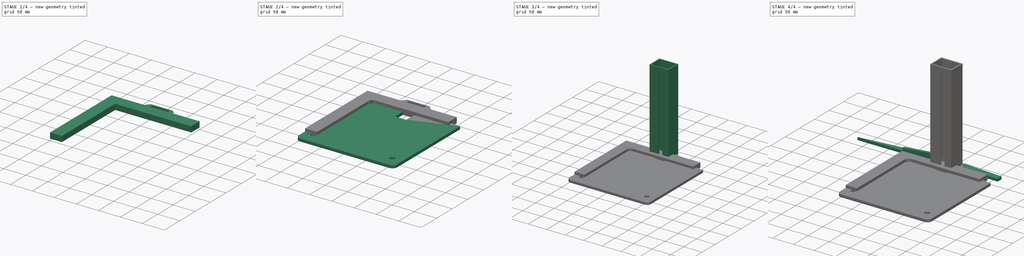
[diagram: build sequence overview — one tinted view per stage of 4, left to right]
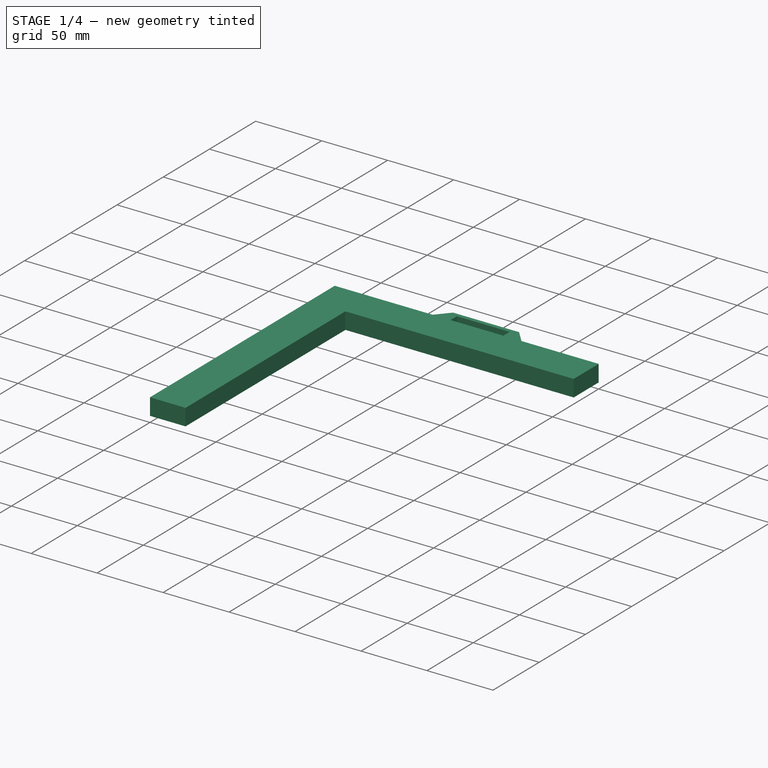
[diagram: stage 1 of 4 — iso view after this stage's code; geometry added in this stage tinted green]
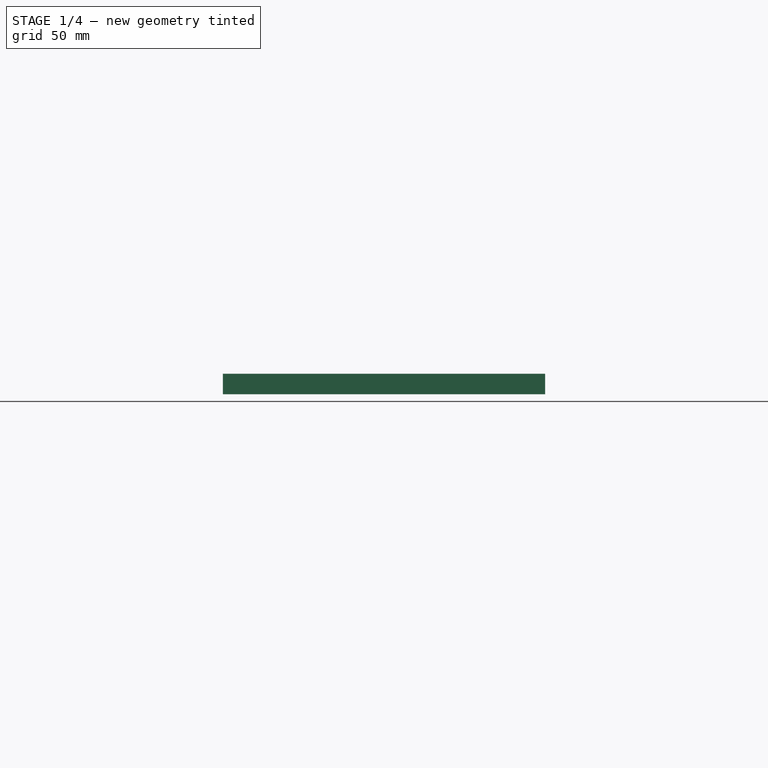
[diagram: stage 1 of 4 — front view after this stage's code; geometry added in this stage tinted green]
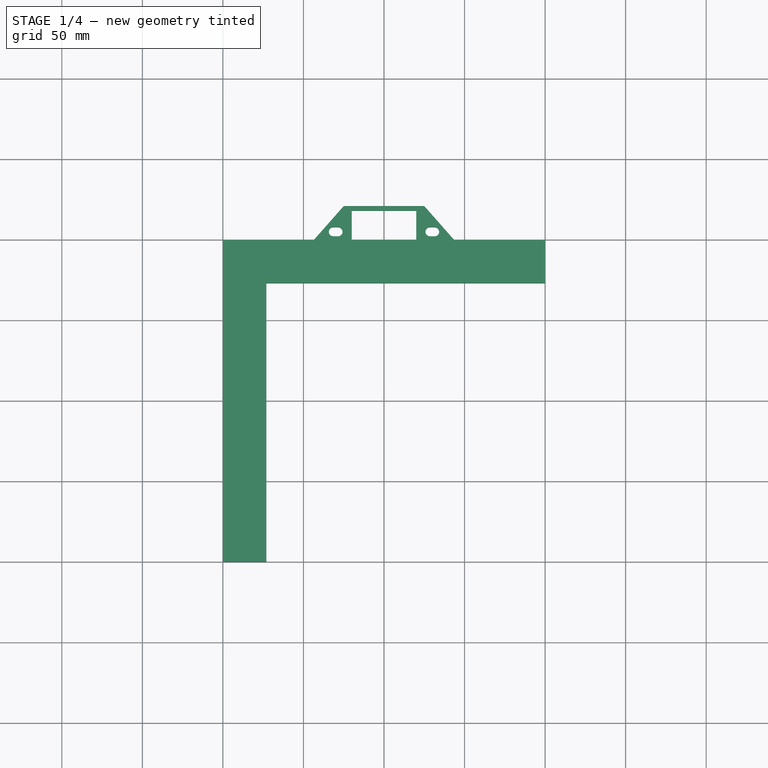
[diagram: stage 1 of 4 — top view after this stage's code; geometry added in this stage tinted green]
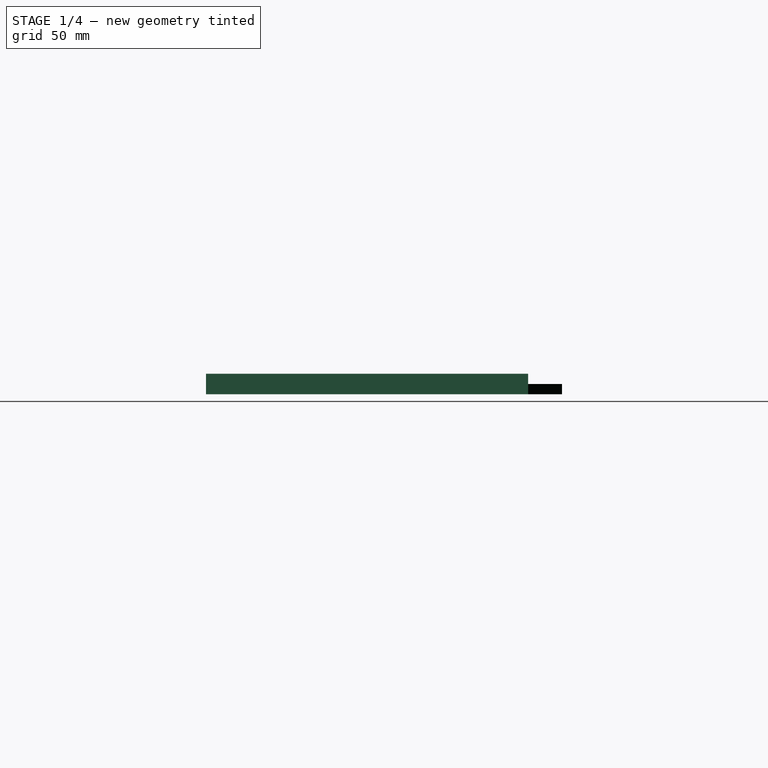
[diagram: stage 1 of 4 — right view after this stage's code; geometry added in this stage tinted green]
FCSTD DOCUMENT  (FreeCAD 0.19R)
Label: Printer3
License: All rights reserved
LicenseURL: http://en.wikipedia.org/wiki/All_rights_reserved
objects: Sketcher::SketchObject×17, PartDesign::Pad×8, PartDesign::Body×8, PartDesign::Pocket×4, PartDesign::Fillet×1
note: 51 computed .brp shape members not serialized (recipe doc carries the construction recipe); baked Part::Feature solids carry a one-line shape summary decoded from their .brp

FEATURE [PartDesign::Body] Body007  label="Bed"
  Group = -> [Sketch012,Pad006,Sketch013,Pocket001]
  Origin = -> Origin007
  Placement = pos=(0,-28,96.35) rot=(0,0,1;0rad)
  Tip = -> Pocket001
FEATURE [Sketcher::SketchObject] Sketch014
  FullyConstrained = true
  MapMode = 5
  Support = -> [XY_Plane008]
  sketch-geometry (4):
    g0: LineSegment StartX=0 StartY=0 StartZ=0 EndX=200 EndY=0 EndZ=0
    g1: LineSegment StartX=200 StartY=0 StartZ=0 EndX=200 EndY=-200 EndZ=0
    g2: LineSegment StartX=200 StartY=-200 StartZ=0 EndX=0 EndY=-200 EndZ=0
    g3: LineSegment StartX=0 StartY=-200 StartZ=0 EndX=0 EndY=0 EndZ=0
  constraints (11):
    c: Coincident(g0,g1)
    c: Coincident(g1,g2)
    c: Coincident(g2,g3)
    c: Coincident(g3,g0)
    c: Horizontal(g0)
    c: Horizontal(g2)
    c: Vertical(g1)
    c: Vertical(g3)
    c: Coincident(g0,g-1)
    c: Distance(g0) = 200
    c: Distance(g1) = 200
FEATURE [PartDesign::Pad] Pad007
  Direction = (1,1,1)
  Length = 12.7
  Length2 = 100
  Profile = -> Sketch014
  Type = 0
FEATURE [Sketcher::SketchObject] Sketch015
  FullyConstrained = false
  MapMode = 5
  Placement = pos=(0,0,12.7) rot=(0,0,1;0rad)
  Support = -> [Pad007]
  sketch-geometry (4):
    g0: LineSegment StartX=27 StartY=-27 StartZ=0 EndX=356.815 EndY=-27 EndZ=0
    g1: LineSegment StartX=356.815 StartY=-27 StartZ=0 EndX=356.815 EndY=-319.156 EndZ=0
    g2: LineSegment StartX=356.815 StartY=-319.156 StartZ=0 EndX=27 EndY=-319.156 EndZ=0
    g3: LineSegment StartX=27 StartY=-319.156 StartZ=0 EndX=27 EndY=-27 EndZ=0
  constraints (10):
    c: Coincident(g0,g1)
    c: Coincident(g1,g2)
    c: Coincident(g2,g3)
    c: Coincident(g3,g0)
    c: Horizontal(g0)
    c: Horizontal(g2)
    c: Vertical(g1)
    c: Vertical(g3)
    c: DistanceX(g0) = 27
    c: DistanceY(g0) = -27
FEATURE [PartDesign::Pocket] Pocket002
  BaseFeature = -> Pad007
  Length = 13
  Length2 = 100
  Profile = -> Sketch015
  Type = 0
FEATURE [Sketcher::SketchObject] Sketch017
  FullyConstrained = false
  MapMode = 5
  Placement = pos=(0,-17,0) rot=(1,0,0;1.5708rad)
  Support = -> [Pocket]
  sketch-geometry (9):
    g0: LineSegment StartX=89 StartY=196.442 StartZ=0 EndX=97 EndY=196.442 EndZ=0
    g1: LineSegment StartX=97 StartY=196.442 StartZ=0 EndX=97 EndY=176.538 EndZ=0
    g2: LineSegment StartX=97 StartY=176.538 StartZ=0 EndX=89 EndY=176.538 EndZ=0
    g3: LineSegment StartX=89 StartY=176.538 StartZ=0 EndX=89 EndY=196.442 EndZ=0
    g4: LineSegment StartX=100 StartY=275.798 StartZ=0 EndX=100 EndY=-189.424 EndZ=0
    g5: LineSegment StartX=93 StartY=214.672 StartZ=0 EndX=93 EndY=194.243 EndZ=0
    g6: LineSegment StartX=123 StartY=219.526 StartZ=0 EndX=123 EndY=197.969 EndZ=0
    g7: LineSegment StartX=102.65 StartY=201.069 StartZ=0 EndX=102.65 EndY=188.207 EndZ=0
    g8: LineSegment StartX=109 StartY=200.806 StartZ=0 EndX=109 EndY=186.098 EndZ=0
  constraints (19):
    c: Coincident(g0,g1)
    c: Coincident(g1,g2)
    c: Coincident(g2,g3)
    c: Coincident(g3,g0)
    c: Horizontal(g0)
    c: Horizontal(g2)
    c: Vertical(g1)
    c: Vertical(g3)
    c: Vertical(g4)
    c: DistanceX(g4) = 100
    c: Distance(g0) = 8
    c: Vertical(g6)
    c: Distance(g6,g4) = 23
    c: Distance(g5,g6) = 30
    c: Symmetric(g0,g0,g5)
    c: Vertical(g7)
    c: Distance(g7,g6) = 20.35
    c: Vertical(g8)
    c: Distance(g8,g7) = 6.35
FEATURE [Sketcher::SketchObject] Sketch018
  FullyConstrained = true
  MapMode = 5
  Placement = pos=(0,0,225) rot=(0,0,1;0rad)
  Support = -> [Pocket]
FEATURE [PartDesign::Body] Body002  label="Column"
  Group = -> [Sketch006,Pad001,Sketch007,Pocket,Sketch017,Sketch018]
  Origin = -> Origin002
  Placement = pos=(0,-22,0) rot=(0,0,1;0rad)
  Tip = -> Pocket
FEATURE [Sketcher::SketchObject] Sketch019
  ExternalGeometry = -> [Pocket003]
  FullyConstrained = true
  MapMode = 5
  Placement = pos=(0,0,6.35) rot=(0,0,1;0rad)
  Support = -> [Pocket003]
FEATURE [Sketcher::SketchObject] Sketch020
  ExternalGeometry = -> [Pad]
  FullyConstrained = false
  MapMode = 5
  Placement = pos=(0,0,0) rot=(1,0,0;3.14159rad)
  Support = -> [Pad]
  sketch-geometry (4):
    g0: LineSegment StartX=92.1821 StartY=-18.4998 StartZ=0 EndX=96.667 EndY=-18.4998 EndZ=0
    g1: LineSegment StartX=96.667 StartY=-18.4998 StartZ=0 EndX=96.667 EndY=-3 EndZ=0
    g2: LineSegment StartX=96.667 StartY=-3 StartZ=0 EndX=92.1821 EndY=-3 EndZ=0
    g3: LineSegment StartX=92.1821 StartY=-3 StartZ=0 EndX=92.1821 EndY=-18.4998 EndZ=0
  constraints (9):
    c: Coincident(g0,g1)
    c: Coincident(g1,g2)
    c: Coincident(g2,g3)
    c: Coincident(g3,g0)
    c: Horizontal(g0)
    c: Horizontal(g2)
    c: Vertical(g1)
    c: Vertical(g3)
    c: Distance(g1,g-3) = 20
FEATURE [PartDesign::Body] Body  label="Base"
  Group = -> [Sketch,Pad,Sketch016,Pocket003,Sketch019,Sketch020]
  Origin = -> Origin
  Placement = pos=(0,-22,0) rot=(0,0,1;0rad)
  Tip = -> Pocket003
FEATURE [Sketcher::SketchObject] Sketch021
  FullyConstrained = false
  MapMode = 5
  Placement = pos=(0,0,12.7) rot=(0,0,1;0rad)
  Support = -> [Fillet]
  sketch-geometry (3):
    g0: Circle CenterX=5 CenterY=-5 CenterZ=0 NormalX=0 NormalY=0 NormalZ=1 AngleXU=0 Radius=3.84809
    g1: LineSegment StartX=100 StartY=-3.69453 StartZ=0 EndX=100 EndY=-13.0067 EndZ=0
    g2: LineSegment StartX=26 StartY=35.8308 StartZ=0 EndX=26 EndY=-39.0103 EndZ=0
  constraints (6):
    c: DistanceX(g0) = 5
    c: DistanceY(g0) = -5
    c: Vertical(g1)
    c: DistanceX(g1) = 100
    c: Vertical(g2)
    c: Distance(g0,g2) = 21
FEATURE [PartDesign::Body] Body008  label="gantry"
  Group = -> [Sketch014,Pad007,Sketch015,Pocket002,Fillet,Sketch021]
  Origin = -> Origin008
  Placement = pos=(0,-22,231) rot=(0,0,1;0rad)
  Tip = -> Fillet
FEATURE [Sketcher::SketchObject] Sketch022
  FullyConstrained = false
  MapMode = 5
  Support = -> [XY_Plane009]
  sketch-geometry (25):
    g0: LineSegment StartX=30 StartY=-17 StartZ=0 EndX=170 EndY=-17 EndZ=0
    g1: LineSegment StartX=170 StartY=-17 StartZ=0 EndX=170 EndY=0 EndZ=0
    g2: LineSegment StartX=170 StartY=0 StartZ=0 EndX=143.52 EndY=0 EndZ=0
    g3: LineSegment StartX=143.52 StartY=0 StartZ=0 EndX=125 EndY=21 EndZ=0
    g4: LineSegment StartX=125 StartY=21 StartZ=0 EndX=75 EndY=21 EndZ=0
    g5: LineSegment StartX=75 StartY=21 StartZ=0 EndX=56.4797 EndY=0 EndZ=0
    g6: LineSegment StartX=56.4797 StartY=0 StartZ=0 EndX=30 EndY=0 EndZ=0
    g7: LineSegment StartX=30 StartY=0 StartZ=0 EndX=30 EndY=-17 EndZ=0
    g8: LineSegment StartX=100 StartY=41.9459 StartZ=0 EndX=100 EndY=-57.4771 EndZ=0
    g9: ArcOfCircle CenterX=68.5 CenterY=5 CenterZ=0 NormalX=0 NormalY=0 NormalZ=1 AngleXU=0 Radius=2.75 StartAngle=1.5708 EndAngle=4.71239
    g10: ArcOfCircle CenterX=71.5 CenterY=5 CenterZ=0 NormalX=0 NormalY=0 NormalZ=1 AngleXU=0 Radius=2.75 StartAngle=4.71239 EndAngle=7.85398
    g11: LineSegment StartX=68.5 StartY=2.25 StartZ=0 EndX=71.5 EndY=2.25 EndZ=0
    g12: LineSegment StartX=68.5 StartY=7.75 StartZ=0 EndX=71.5 EndY=7.75 EndZ=0
    g13: ArcOfCircle CenterX=128.5 CenterY=5 CenterZ=0 NormalX=0 NormalY=0 NormalZ=1 AngleXU=0 Radius=2.75 StartAngle=1.5708 EndAngle=4.71239
    g14: ArcOfCircle CenterX=131.5 CenterY=5 CenterZ=0 NormalX=0 NormalY=0 NormalZ=1 AngleXU=0 Radius=2.75 StartAngle=4.71239 EndAngle=7.85398
    g15: LineSegment StartX=128.5 StartY=2.25 StartZ=0 EndX=131.5 EndY=2.25 EndZ=0
    g16: LineSegment StartX=128.5 StartY=7.75 StartZ=0 EndX=131.5 EndY=7.75 EndZ=0
    g17: Circle CenterX=37.5 CenterY=-11 CenterZ=0 NormalX=0 NormalY=0 NormalZ=1 AngleXU=0 Radius=3.25
    g18: Circle CenterX=65 CenterY=-6 CenterZ=0 NormalX=0 NormalY=0 NormalZ=1 AngleXU=0 Radius=3.25
    g19: Circle CenterX=135 CenterY=-6 CenterZ=0 NormalX=0 NormalY=0 NormalZ=1 AngleXU=0 Radius=3.25
    g20: Circle CenterX=162.5 CenterY=-11 CenterZ=0 NormalX=0 NormalY=0 NormalZ=1 AngleXU=0 Radius=3.25
    g21: LineSegment StartX=80 StartY=18 StartZ=0 EndX=120 EndY=18 EndZ=0
    g22: LineSegment StartX=120 StartY=18 StartZ=0 EndX=120 EndY=0 EndZ=0
    g23: LineSegment StartX=120 StartY=0 StartZ=0 EndX=80 EndY=0 EndZ=0
    g24: LineSegment StartX=80 StartY=0 StartZ=0 EndX=80 EndY=18 EndZ=0
  constraints (64):
    c: Horizontal(g0)
    c: Coincident(g0,g1)
    c: PointOnObject(g1,g-1)
    c: Vertical(g1)
    c: Coincident(g1,g2)
    c: PointOnObject(g2,g-1)
    c: Coincident(g2,g3)
    c: Coincident(g3,g4)
    c: Horizontal(g4)
    c: Coincident(g4,g5)
    c: Coincident(g5,g6)
    c: PointOnObject(g6,g-1)
    c: Coincident(g6,g7)
    c: Coincident(g0,g7)
    c: Distance(g1) = 17
    c: Vertical(g7)
    c: DistanceX(g8) = 100
    c: Symmetric(g3,g4,g8)
    c: Symmetric(g2,g5,g8)
    c: Equal(g2,g6)
    c: DistanceY(g3) = 21
    c: Distance(g4) = 50
    c: DistanceX(g0) = 30
    c: Distance(g3) = 28
    c: Tangent(g9,g12) = 1.5708
    c: Tangent(g9,g11) = -1.5708
    c: Tangent(g11,g10) = -1.5708
    c: Tangent(g12,g10) = 1.5708
    c: Horizontal(g11)
    c: Equal(g9,g10)
    c: Tangent(g13,g16) = 1.5708
    c: Tangent(g13,g15) = -1.5708
    c: Tangent(g15,g14) = -1.5708
    c: Tangent(g16,g14) = 1.5708
    c: Horizontal(g15)
    c: Equal(g13,g14)
    c: Diameter(g19) = 6.5
    c: Equal(g19,g18)
    c: Equal(g19,g17)
    c: Symmetric(g18,g19,g8)
    c: Symmetric(g20,g17,g8)
    c: DistanceY(g17) = -11
    c: DistanceY(g18) = -6
    c: Diameter(g20) = 6.5
    c: DistanceX(g20) = 162.5
    c: Distance(g10,g10) = 5.5
    c: Distance(g12) = 3
    c: Distance(g16) = 3
    c: Distance(g13,g13) = 5.5
    c: Symmetric(g14,g9,g8)
    c: DistanceY(g10) = 5
    c: Distance(g14,g10) = 60
    c: Distance(g19,g18) = 70
    c: Coincident(g21,g22)
    c: Coincident(g22,g23)
    c: Coincident(g23,g24)
    c: Coincident(g24,g21)
    c: Horizontal(g21)
    c: Vertical(g22)
    c: Vertical(g24)
    c: Symmetric(g22,g23,g8)
    c: DistanceY(g21) = 18
    c: PointOnObject(g22,g-1)
    c: Distance(g21) = 40
FEATURE [PartDesign::Pad] Pad008
  Direction = (1,1,1)
  Length = 6.35
  Length2 = 100
  Profile = -> Sketch022
  Type = 0
FEATURE [PartDesign::Body] Body009  label="TopPlate"
  Group = -> [Sketch022,Pad008]
  Origin = -> Origin009
  Placement = pos=(0,-22,225) rot=(0,0,1;0rad)
  Tip = -> Pad008
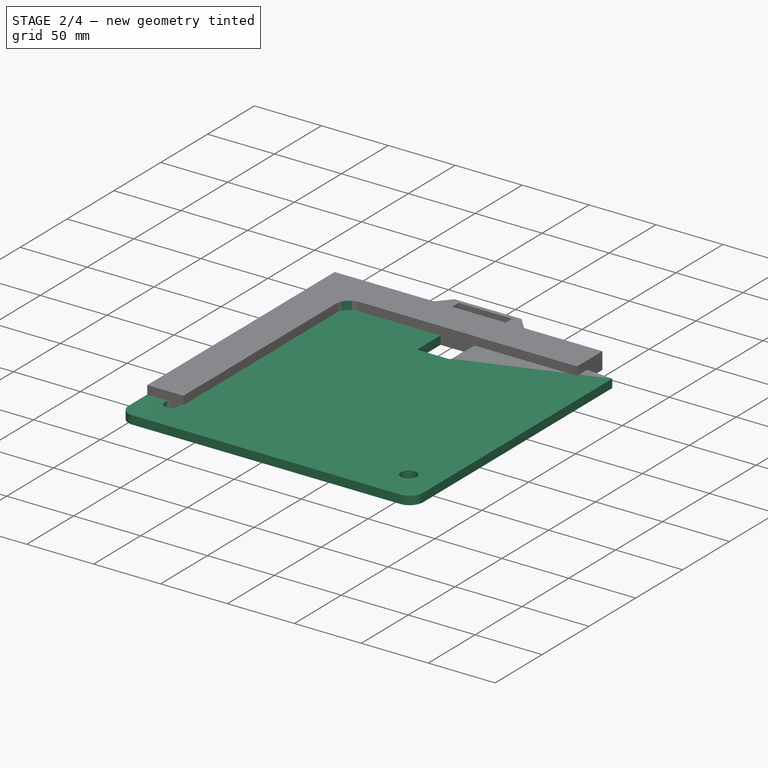
[diagram: stage 2 of 4 — iso view after this stage's code; geometry added in this stage tinted green]
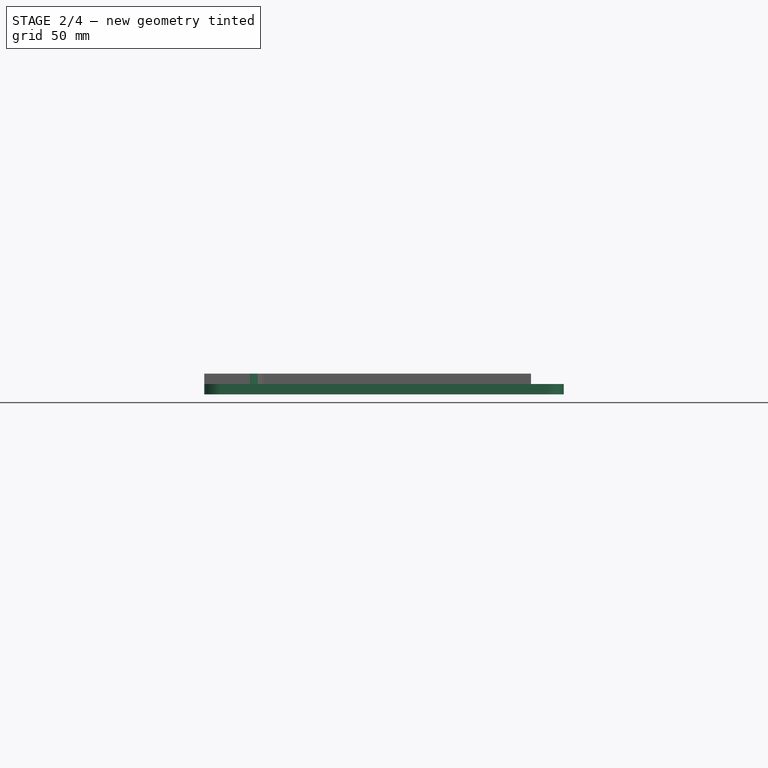
[diagram: stage 2 of 4 — front view after this stage's code; geometry added in this stage tinted green]
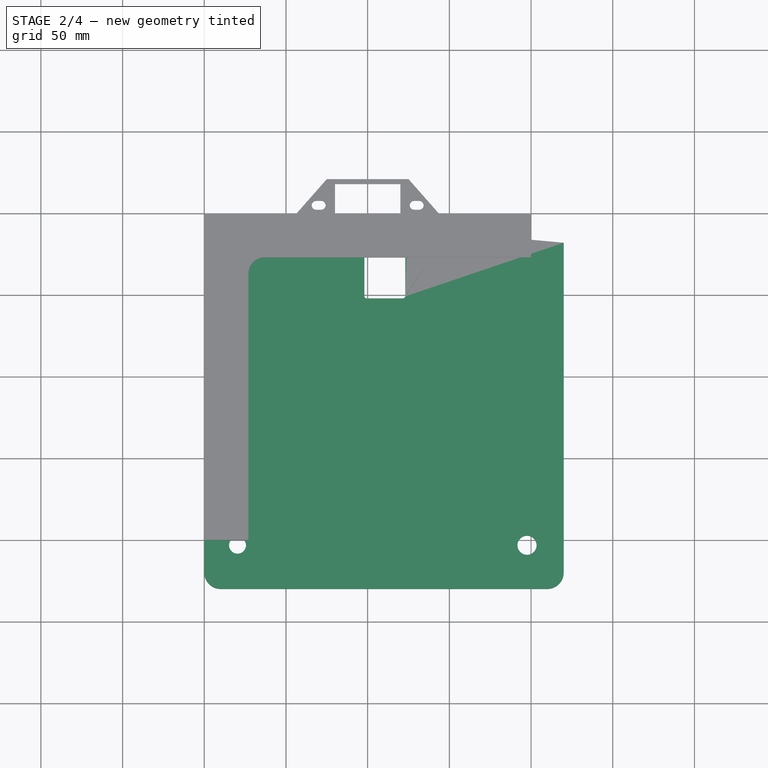
[diagram: stage 2 of 4 — top view after this stage's code; geometry added in this stage tinted green]
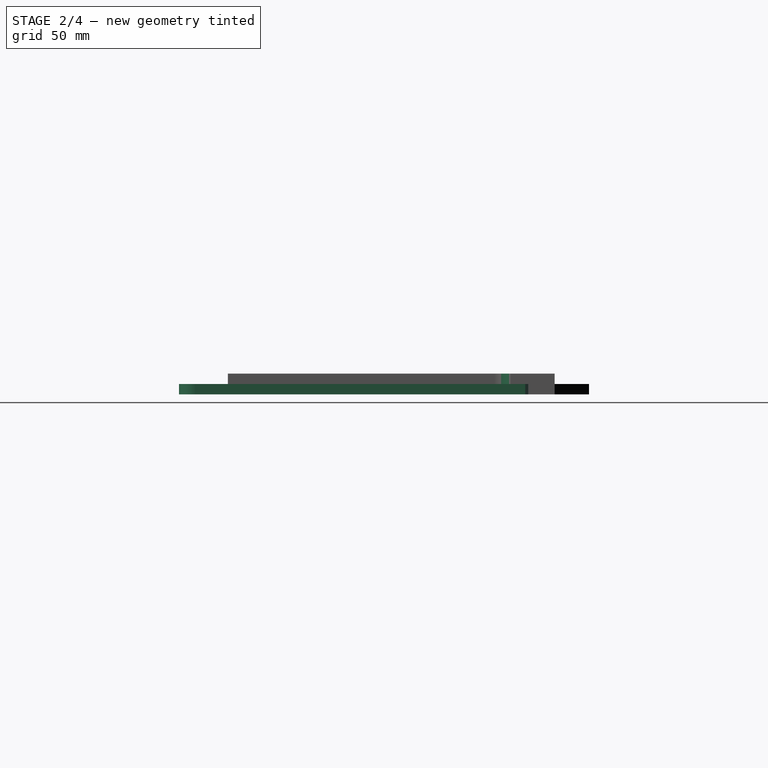
[diagram: stage 2 of 4 — right view after this stage's code; geometry added in this stage tinted green]
FEATURE [Sketcher::SketchObject] Sketch
  FullyConstrained = false
  MapMode = 5
  sketch-geometry (25):
    g0: LineSegment StartX=220 StartY=-2.5 StartZ=0 EndX=220 EndY=-219.878 EndZ=0
    g1: LineSegment StartX=210 StartY=-229.878 StartZ=0 EndX=10 EndY=-229.878 EndZ=0
    g2: LineSegment StartX=0 StartY=-219.878 StartZ=0 EndX=0 EndY=-2.5 EndZ=0
    g3: LineSegment StartX=2.5 StartY=0 StartZ=0 EndX=74.5 EndY=0 EndZ=0
    g4: LineSegment StartX=74.5 StartY=0 StartZ=0 EndX=74.5 EndY=-14.5 EndZ=0
    g5: LineSegment StartX=125.5 StartY=-14.5 StartZ=0 EndX=125.5 EndY=0 EndZ=0
    g6: LineSegment StartX=125.5 StartY=0 StartZ=0 EndX=217.5 EndY=0 EndZ=0
    g7: LineSegment StartX=100 StartY=29.7116 StartZ=0 EndX=100 EndY=-38.9559 EndZ=0
    g8: ArcOfCircle CenterX=2.5 CenterY=-2.5 CenterZ=0 NormalX=0 NormalY=0 NormalZ=1 AngleXU=0 Radius=2.5 StartAngle=1.5708 EndAngle=3.14159
    g9: ArcOfCircle CenterX=217.5 CenterY=-2.5 CenterZ=0 NormalX=0 NormalY=0 NormalZ=1 AngleXU=0 Radius=2.5 StartAngle=4.63e-14 EndAngle=1.5708
    g10: ArcOfCircle CenterX=210 CenterY=-219.878 CenterZ=0 NormalX=0 NormalY=0 NormalZ=1 AngleXU=0 Radius=10 StartAngle=4.71239 EndAngle=6.28319
    g11: ArcOfCircle CenterX=10 CenterY=-219.878 CenterZ=0 NormalX=0 NormalY=0 NormalZ=1 AngleXU=0 Radius=10 StartAngle=3.14159 EndAngle=4.71239
    g12: ArcOfCircle CenterX=123 CenterY=-14.5 CenterZ=0 NormalX=0 NormalY=0 NormalZ=1 AngleXU=0 Radius=2.5 StartAngle=4.71239 EndAngle=6.28319
    g13: ArcOfCircle CenterX=77 CenterY=-14.5 CenterZ=0 NormalX=0 NormalY=0 NormalZ=1 AngleXU=0 Radius=2.5 StartAngle=3.14159 EndAngle=4.71239
    g14: LineSegment StartX=98 StartY=-17 StartZ=0 EndX=98 EndY=-50.5 EndZ=0
    g15: LineSegment StartX=99.5 StartY=-52 StartZ=0 EndX=121.5 EndY=-52 EndZ=0
    g16: LineSegment StartX=123 StartY=-50.5 StartZ=0 EndX=123 EndY=-17 EndZ=0
    g17: LineSegment StartX=77 StartY=-17 StartZ=0 EndX=98 EndY=-17 EndZ=0
    g18: ArcOfCircle CenterX=99.5 CenterY=-50.5 CenterZ=0 NormalX=0 NormalY=0 NormalZ=1 AngleXU=0 Radius=1.5 StartAngle=3.14159 EndAngle=4.71239
    g19: ArcOfCircle CenterX=121.5 CenterY=-50.5 CenterZ=0 NormalX=0 NormalY=0 NormalZ=1 AngleXU=0 Radius=1.5 StartAngle=4.71239 EndAngle=6.28319
    g20: Circle CenterX=207 CenterY=-216.878 CenterZ=0 NormalX=0 NormalY=0 NormalZ=1 AngleXU=0 Radius=2.25
    g21: Circle CenterX=13 CenterY=-216.878 CenterZ=0 NormalX=0 NormalY=0 NormalZ=1 AngleXU=0 Radius=2.25
    g22: Circle CenterX=207 CenterY=-13 CenterZ=0 NormalX=0 NormalY=0 NormalZ=1 AngleXU=0 Radius=2.25
    g23: Circle CenterX=13 CenterY=-13 CenterZ=0 NormalX=0 NormalY=0 NormalZ=1 AngleXU=0 Radius=2.25
    g24: LineSegment StartX=110 StartY=54.384 StartZ=0 EndX=110 EndY=-317.389 EndZ=0
  constraints (63):
    c: Vertical(g0)
    c: Vertical(g2)
    c: Equal(g2,g0)
    c: PointOnObject(g3,g-1)
    c: Horizontal(g3)
    c: Coincident(g3,g4)
    c: PointOnObject(g5,g-1)
    c: Coincident(g5,g6)
    c: Horizontal(g6)
    c: Vertical(g5)
    c: Vertical(g4)
    c: Symmetric(g5,g3,g7)
    c: DistanceX(g7) = 100
    c: Tangent(g2,g8) = 1.5708
    c: Tangent(g3,g8) = 1.5708
    c: Tangent(g6,g9) = 1.5708
    c: Tangent(g0,g9) = 1.5708
    c: Tangent(g1,g10) = 1.5708
    c: Tangent(g0,g10) = 1.5708
    c: Tangent(g1,g11) = 1.5708
    c: Tangent(g2,g11) = 1.5708
    c: PointOnObject(g2,g-2)
    c: Tangent(g5,g12) = -1.5708
    c: Tangent(g4,g13) = -1.5708
    c: Equal(g12,g13)
    c: Distance(g5,g3) = 51
    c: Vertical(g14)
    c: Vertical(g16)
    c: Horizontal(g17)
    c: DistanceY(g12) = -17
    c: Tangent(g14,g18) = -1.5708
    c: Tangent(g15,g18) = -1.5708
    c: Tangent(g16,g19) = -1.5708
    c: Tangent(g15,g19) = -1.5708
    c: DistanceY(g17) = -17
    c: Distance(g16,g14) = 25
    c: Tangent(g17,g13) = -1.5708
    c: DistanceY(g15,g16) = 35
    c: Coincident(g14,g17)
    c: Horizontal(g15)
    c: Diameter(g19) = 3
    c: Diameter(g10) = 20
    c: Diameter(g11) = 20
    c: Diameter(g9) = 5
    c: Diameter(g8) = 5
    c: Distance(g0,g2) = 220
    c: Distance(g6,g1) = 230
    c: Diameter(g18) = 3
    c: Diameter(g13) = 5
    c: Coincident(g16,g12)
    c: Perpendicular(g12,g16)
    c: Diameter(g23) = 4.5
    c: Equal(g23,g22)
    c: Equal(g23,g20)
    c: Diameter(g21) = 4.5
    c: Vertical(g24)
    c: DistanceX(g24) = 110
    c: Symmetric(g22,g23,g24)
    c: Symmetric(g20,g21,g24)
    c: Distance(g20,g0) = 13
    c: Distance(g20,g1) = 13
    c: Distance(g22,g0) = 13
    c: Distance(g22,g6) = 13
FEATURE [PartDesign::Pad] Pad
  Direction = (1,1,1)
  Length = 6.35
  Length2 = 100
  Profile = -> Sketch
  Type = 0
FEATURE [PartDesign::Fillet] Fillet
  Base = -> Pocket002 [Edge18]
  BaseFeature = -> Pocket002
  Radius = 10
  SupportTransform = false
FEATURE [Sketcher::SketchObject] Sketch016
  FullyConstrained = false
  MapMode = 5
  Placement = pos=(0,0,0) rot=(1,0,0;3.14159rad)
  Support = -> [Pad]
  sketch-geometry (8):
    g0: LineSegment StartX=150 StartY=11.5558 StartZ=0 EndX=150 EndY=-66.6529 EndZ=0
    g1: LineSegment StartX=150 StartY=-66.6529 StartZ=0 EndX=50 EndY=-66.6529 EndZ=0
    g2: LineSegment StartX=50 StartY=-66.6529 StartZ=0 EndX=50 EndY=26.8046 EndZ=0
    g3: LineSegment StartX=50 StartY=26.8046 StartZ=0 EndX=-42.6332 EndY=26.8046 EndZ=0
    g4: LineSegment StartX=-42.6332 StartY=26.8046 StartZ=0 EndX=-42.6332 EndY=-265.193 EndZ=0
    g5: LineSegment StartX=-42.6332 StartY=-265.193 StartZ=0 EndX=358.07 EndY=-265.193 EndZ=0
    g6: LineSegment StartX=358.07 StartY=-265.193 StartZ=0 EndX=358.07 EndY=30.5784 EndZ=0
    g7: LineSegment StartX=358.07 StartY=30.5784 StartZ=0 EndX=150 EndY=11.5558 EndZ=0
  constraints (17):
    c: Vertical(g0)
    c: Coincident(g0,g1)
    c: Horizontal(g1)
    c: Coincident(g1,g2)
    c: Vertical(g2)
    c: Coincident(g2,g3)
    c: Horizontal(g3)
    c: Coincident(g3,g4)
    c: Vertical(g4)
    c: Coincident(g4,g5)
    c: Horizontal(g5)
    c: Coincident(g5,g6)
    c: Vertical(g6)
    c: Coincident(g6,g7)
    c: Coincident(g7,g0)
    c: DistanceX(g1) = 50
    c: DistanceX(g0) = 150
FEATURE [PartDesign::Pocket] Pocket003
  BaseFeature = -> Pad
  Length = 9
  Length2 = 100
  Profile = -> Sketch016
  Type = 0
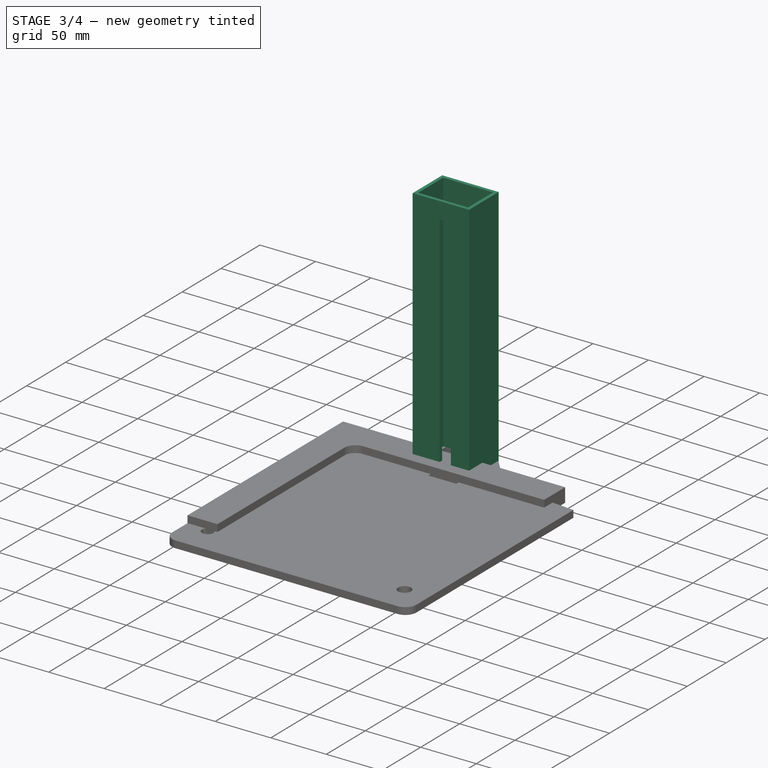
[diagram: stage 3 of 4 — iso view after this stage's code; geometry added in this stage tinted green]
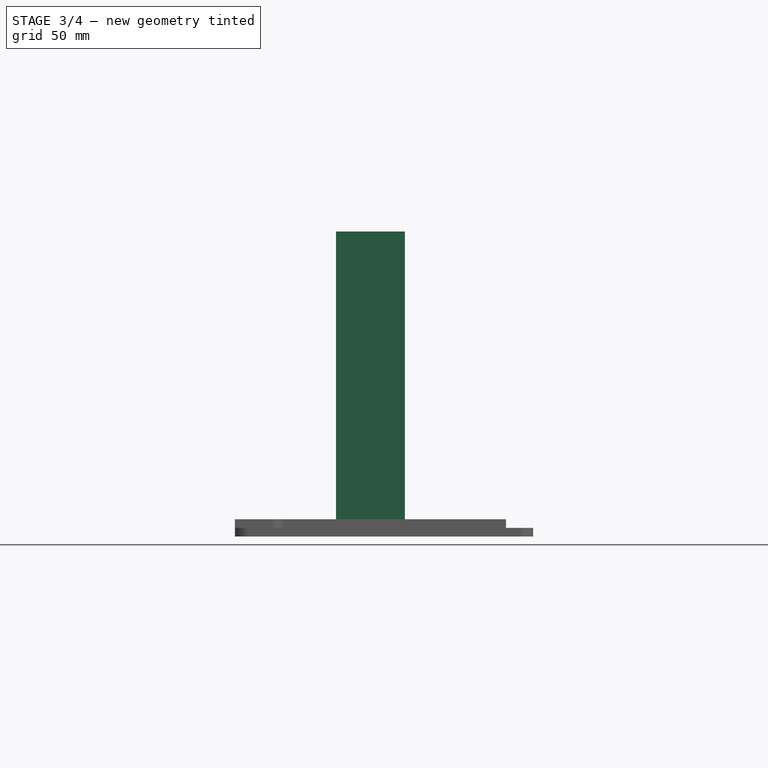
[diagram: stage 3 of 4 — front view after this stage's code; geometry added in this stage tinted green]
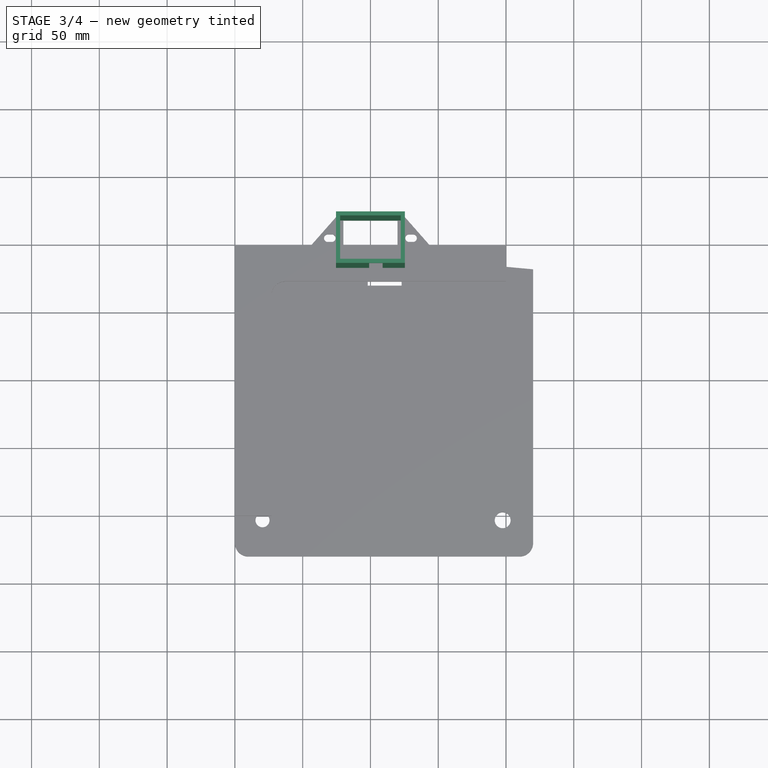
[diagram: stage 3 of 4 — top view after this stage's code; geometry added in this stage tinted green]
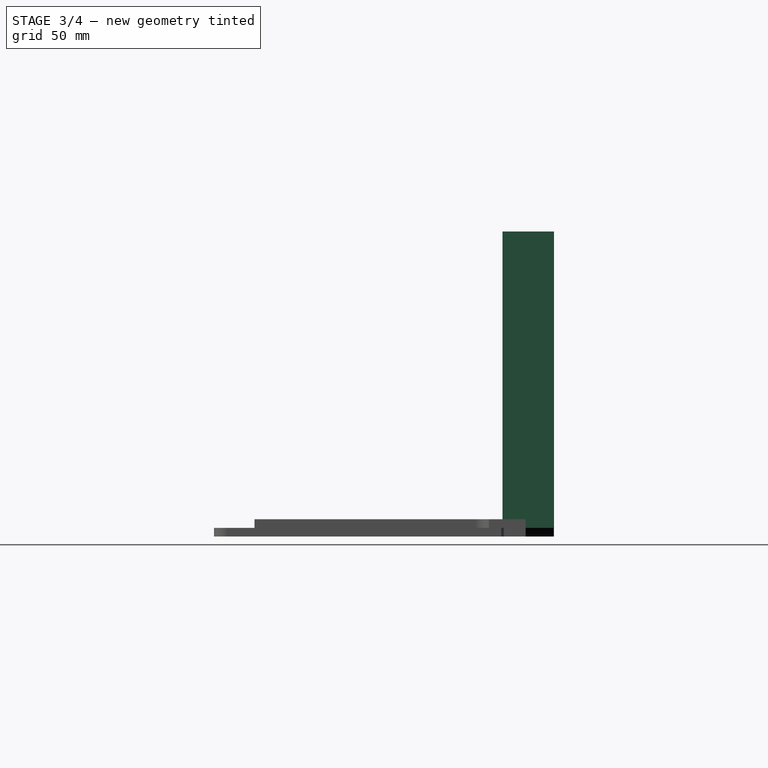
[diagram: stage 3 of 4 — right view after this stage's code; geometry added in this stage tinted green]
FEATURE [Sketcher::SketchObject] Sketch006
  FullyConstrained = false
  MapMode = 5
  Support = -> [XY_Plane002]
  sketch-geometry (9):
    g0: LineSegment StartX=74.6 StartY=21 StartZ=0 EndX=125.4 EndY=21 EndZ=0
    g1: LineSegment StartX=125.4 StartY=21 StartZ=0 EndX=125.4 EndY=-17 EndZ=0
    g2: LineSegment StartX=125.4 StartY=-17 StartZ=0 EndX=74.6 EndY=-17 EndZ=0
    g3: LineSegment StartX=74.6 StartY=-17 StartZ=0 EndX=74.6 EndY=21 EndZ=0
    g4: LineSegment StartX=100 StartY=34.7898 StartZ=0 EndX=100 EndY=11.1526 EndZ=0
    g5: LineSegment StartX=77.6 StartY=18 StartZ=0 EndX=122.4 EndY=18 EndZ=0
    g6: LineSegment StartX=122.4 StartY=18 StartZ=0 EndX=122.4 EndY=-14 EndZ=0
    g7: LineSegment StartX=122.4 StartY=-14 StartZ=0 EndX=77.6 EndY=-14 EndZ=0
    g8: LineSegment StartX=77.6 StartY=-14 StartZ=0 EndX=77.6 EndY=18 EndZ=0
  constraints (25):
    c: Coincident(g0,g1)
    c: Coincident(g1,g2)
    c: Coincident(g2,g3)
    c: Coincident(g3,g0)
    c: Horizontal(g0)
    c: Horizontal(g2)
    c: Vertical(g1)
    c: Vertical(g3)
    c: Distance(g0) = 50.8
    c: Distance(g1) = 38
    c: DistanceY(g1,g-1) = 17
    c: Symmetric(g0,g0,g4)
    c: DistanceX(g4) = 100
    c: Coincident(g5,g6)
    c: Coincident(g6,g7)
    c: Coincident(g7,g8)
    c: Coincident(g8,g5)
    c: Horizontal(g5)
    c: Horizontal(g7)
    c: Vertical(g6)
    c: Vertical(g8)
    c: Distance(g5,g1) = 3
    c: Distance(g5,g0) = 3
    c: Distance(g7,g3) = 3
    c: Distance(g6,g2) = 3
FEATURE [PartDesign::Pad] Pad001
  Direction = (1,1,1)
  Length = 225
  Length2 = 100
  Profile = -> Sketch006
  Type = 0
FEATURE [Sketcher::SketchObject] Sketch007
  FullyConstrained = true
  MapMode = 5
  Placement = pos=(0,-17,0) rot=(1,0,0;1.5708rad)
  Support = -> [Pad001]
  sketch-geometry (4):
    g0: LineSegment StartX=99 StartY=210 StartZ=0 EndX=109 EndY=210 EndZ=0
    g1: LineSegment StartX=109 StartY=210 StartZ=0 EndX=109 EndY=10 EndZ=0
    g2: LineSegment StartX=109 StartY=10 StartZ=0 EndX=99 EndY=10 EndZ=0
    g3: LineSegment StartX=99 StartY=10 StartZ=0 EndX=99 EndY=210 EndZ=0
  constraints (12):
    c: Coincident(g0,g1)
    c: Coincident(g1,g2)
    c: Coincident(g2,g3)
    c: Coincident(g3,g0)
    c: Horizontal(g0)
    c: Horizontal(g2)
    c: Vertical(g1)
    c: Vertical(g3)
    c: Distance(g2) = 10
    c: DistanceX(g1) = 109
    c: DistanceY(g1) = 10
    c: Distance(g1) = 200
FEATURE [PartDesign::Pocket] Pocket
  BaseFeature = -> Pad001
  Length = 5
  Length2 = 100
  Profile = -> Sketch007
  Type = 0
FEATURE [PartDesign::Body] Body006  label="Gusset3"
  Group = -> [Sketch011,Pad005]
  Origin = -> Origin006
  Placement = pos=(0,-22,0) rot=(0,0,1;0rad)
  Tip = -> Pad005
FEATURE [Sketcher::SketchObject] Sketch012
  FullyConstrained = false
  MapMode = 5
  Support = -> [XY_Plane007]
  sketch-geometry (5):
    g0: LineSegment StartX=37 StartY=-30 StartZ=0 EndX=191 EndY=-30 EndZ=0
    g1: LineSegment StartX=191 StartY=-30 StartZ=0 EndX=191 EndY=-190 EndZ=0
    g2: LineSegment StartX=191 StartY=-190 StartZ=0 EndX=37 EndY=-190 EndZ=0
    g3: LineSegment StartX=37 StartY=-190 StartZ=0 EndX=37 EndY=-30 EndZ=0
    g4: LineSegment StartX=114 StartY=-22.3792 StartZ=0 EndX=114 EndY=-218.376 EndZ=0
  constraints (13):
    c: Coincident(g0,g1)
    c: Coincident(g1,g2)
    c: Coincident(g2,g3)
    c: Coincident(g3,g0)
    c: Horizontal(g0)
    c: Horizontal(g2)
    c: Vertical(g1)
    c: Vertical(g3)
    c: DistanceX(g0) = 37
    c: DistanceY(g0) = -30
    c: Distance(g2) = 154
    c: Distance(g1) = 160
    c: Symmetric(g0,g0,g4)
FEATURE [PartDesign::Pad] Pad006
  Direction = (1,1,1)
  Length = 6.35
  Length2 = 100
  Profile = -> Sketch012
  Type = 0
FEATURE [Sketcher::SketchObject] Sketch013
  FullyConstrained = true
  MapMode = 5
  Placement = pos=(0,0,0) rot=(1,0,0;3.14159rad)
  Support = -> [Pad006]
  sketch-geometry (4):
    g0: LineSegment StartX=39 StartY=188 StartZ=0 EndX=189 EndY=188 EndZ=0
    g1: LineSegment StartX=189 StartY=188 StartZ=0 EndX=189 EndY=38 EndZ=0
    g2: LineSegment StartX=189 StartY=38 StartZ=0 EndX=39 EndY=38 EndZ=0
    g3: LineSegment StartX=39 StartY=38 StartZ=0 EndX=39 EndY=188 EndZ=0
  constraints (12):
    c: Coincident(g0,g1)
    c: Coincident(g1,g2)
    c: Coincident(g2,g3)
    c: Coincident(g3,g0)
    c: Horizontal(g0)
    c: Horizontal(g2)
    c: Vertical(g1)
    c: Vertical(g3)
    c: Distance(g0) = 150
    c: DistanceY(g0) = 188
    c: Distance(g1) = 150
    c: DistanceX(g0) = 39
FEATURE [PartDesign::Pocket] Pocket001
  BaseFeature = -> Pad006
  Length = 2
  Length2 = 100
  Profile = -> Sketch013
  Type = 0
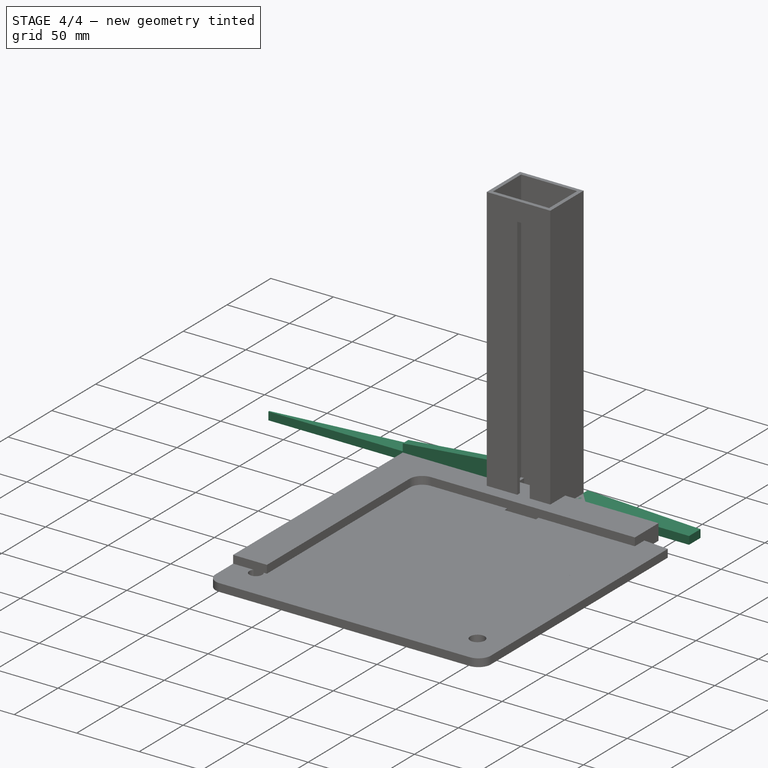
[diagram: stage 4 of 4 — iso view after this stage's code; geometry added in this stage tinted green]
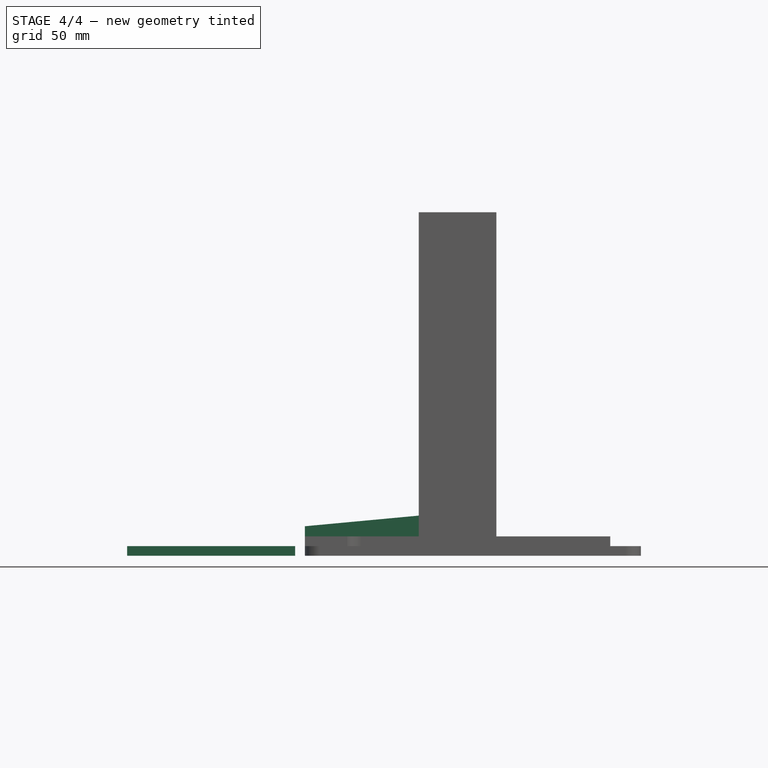
[diagram: stage 4 of 4 — front view after this stage's code; geometry added in this stage tinted green]
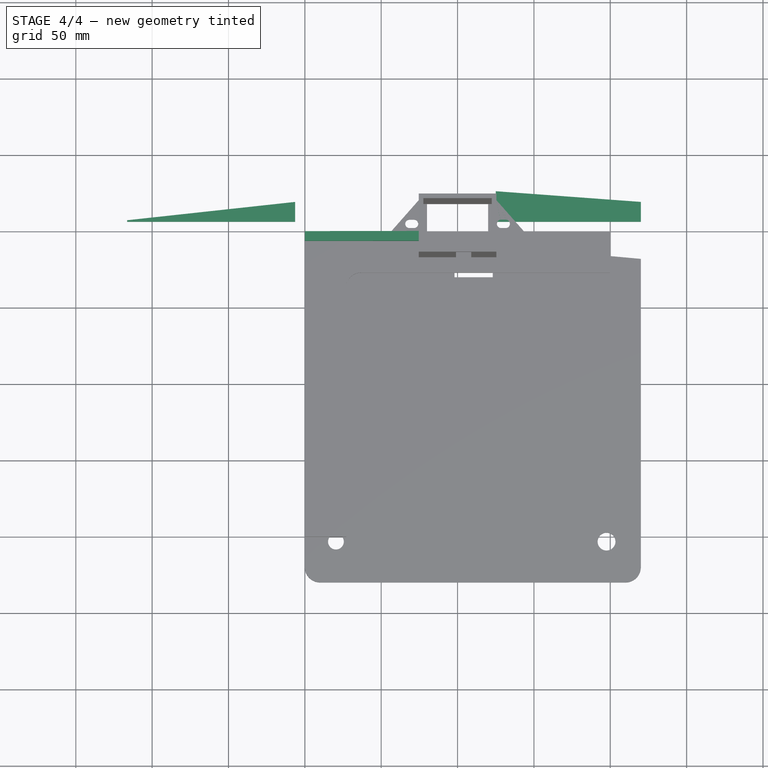
[diagram: stage 4 of 4 — top view after this stage's code; geometry added in this stage tinted green]
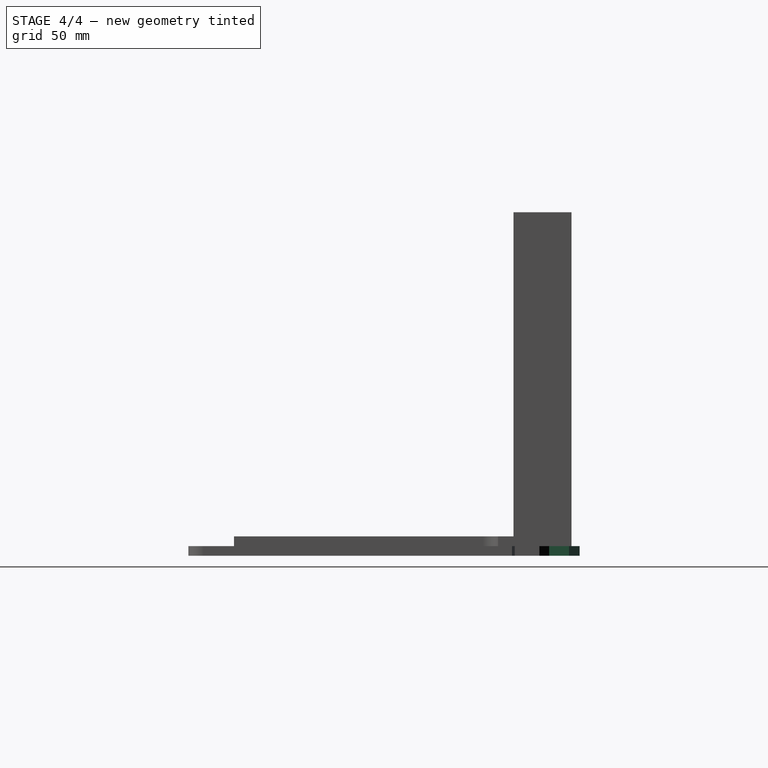
[diagram: stage 4 of 4 — right view after this stage's code; geometry added in this stage tinted green]
FEATURE [Sketcher::SketchObject] Sketch009
  FullyConstrained = true
  MapMode = 5
  Placement = pos=(0,0,0) rot=(1,0,0;1.5708rad)
  Support = -> [XZ_Plane004]
  sketch-geometry (4):
    g0: LineSegment StartX=75 StartY=6.35 StartZ=0 EndX=75 EndY=26.35 EndZ=0
    g1: LineSegment StartX=75 StartY=26.35 StartZ=0 EndX=0 EndY=19.35 EndZ=0
    g2: LineSegment StartX=0 StartY=19.35 StartZ=0 EndX=0 EndY=6.35 EndZ=0
    g3: LineSegment StartX=0 StartY=6.35 StartZ=0 EndX=75 EndY=6.35 EndZ=0
  constraints (12):
    c: Vertical(g0)
    c: Coincident(g0,g1)
    c: Coincident(g1,g2)
    c: Coincident(g2,g3)
    c: Coincident(g3,g0)
    c: Horizontal(g3)
    c: Distance(g0) = 20
    c: Vertical(g2)
    c: Distance(g2) = 13
    c: DistanceX(g0) = 75
    c: DistanceY(g2) = 6.35
    c: PointOnObject(g1,g-2)
FEATURE [PartDesign::Pad] Pad003
  Direction = (1,1,1)
  Length = 6.35
  Length2 = 100
  Placement = pos=(0,0,0) rot=(1,0,0;1.5708rad)
  Profile = -> Sketch009
  Type = 0
FEATURE [PartDesign::Body] Body004  label="Gusset1"
  Group = -> [Sketch009,Pad003]
  Origin = -> Origin004
  Placement = pos=(0,-22,0) rot=(0,0,1;0rad)
  Tip = -> Pad003
FEATURE [Sketcher::SketchObject] Sketch010
  FullyConstrained = true
  MapMode = 5
  sketch-geometry (4):
    g0: LineSegment StartX=-6.35 StartY=6.35 StartZ=0 EndX=-6.35 EndY=19.35 EndZ=0
    g1: LineSegment StartX=-6.35 StartY=19.35 StartZ=0 EndX=-116.35 EndY=7.35 EndZ=0
    g2: LineSegment StartX=-116.35 StartY=7.35 StartZ=0 EndX=-116.35 EndY=6.35 EndZ=0
    g3: LineSegment StartX=-116.35 StartY=6.35 StartZ=0 EndX=-6.35 EndY=6.35 EndZ=0
  constraints (12):
    c: Vertical(g0)
    c: Coincident(g0,g1)
    c: Coincident(g1,g2)
    c: Vertical(g2)
    c: Coincident(g2,g3)
    c: Coincident(g3,g0)
    c: Horizontal(g3)
    c: Distance(g2) = 1
    c: Distance(g0) = 13
    c: DistanceY(g0) = 6.35
    c: DistanceX(g0) = -6.35
    c: Distance(g3) = 110
FEATURE [PartDesign::Pad] Pad004
  Direction = (1,1,1)
  Length = 6.35
  Length2 = 100
  Profile = -> Sketch010
  Type = 0
FEATURE [PartDesign::Body] Body005  label="Gusset2"
  Group = -> [Sketch010,Pad004]
  Origin = -> Origin005
  Placement = pos=(0,-22,0) rot=(0,0,1;0rad)
  Tip = -> Pad004
FEATURE [Sketcher::SketchObject] Sketch011
  FullyConstrained = true
  MapMode = 5
  sketch-geometry (4):
    g0: LineSegment StartX=125 StartY=26.35 StartZ=0 EndX=125 EndY=6.35 EndZ=0
    g1: LineSegment StartX=125 StartY=6.35 StartZ=0 EndX=220 EndY=6.35 EndZ=0
    g2: LineSegment StartX=220 StartY=6.35 StartZ=0 EndX=220 EndY=19.35 EndZ=0
    g3: LineSegment StartX=220 StartY=19.35 StartZ=0 EndX=125 EndY=26.35 EndZ=0
  constraints (12):
    c: Vertical(g0)
    c: Coincident(g0,g1)
    c: Horizontal(g1)
    c: Coincident(g1,g2)
    c: Vertical(g2)
    c: Coincident(g2,g3)
    c: Coincident(g3,g0)
    c: Distance(g0) = 20
    c: DistanceY(g0) = 6.35
    c: DistanceX(g0) = 125
    c: DistanceX(g2) = 220
    c: Distance(g2) = 13
FEATURE [PartDesign::Pad] Pad005
  Direction = (1,1,1)
  Length = 6.35
  Length2 = 100
  Profile = -> Sketch011
  Type = 0
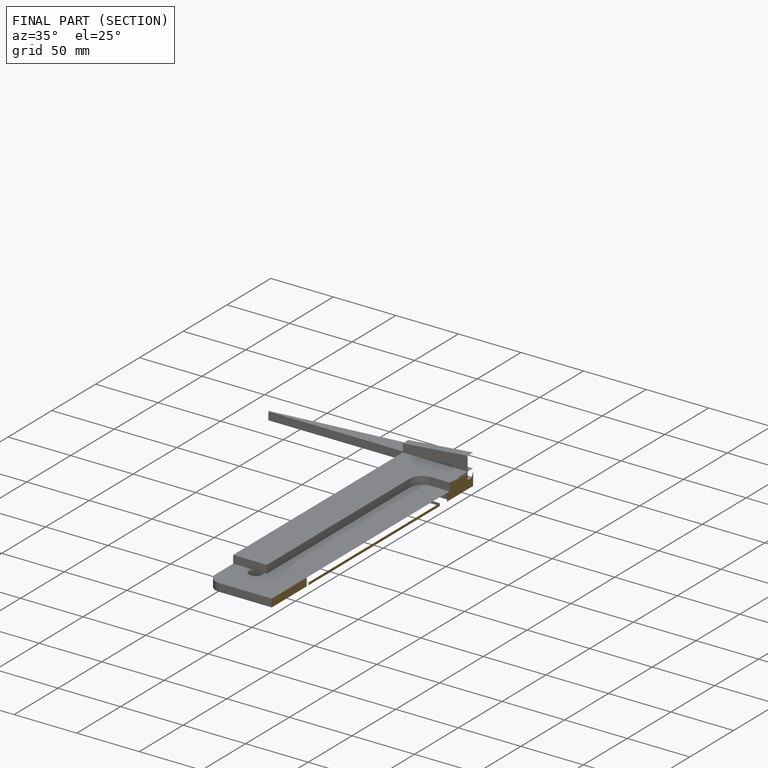
[diagram: finished part — half-section view (interior)]
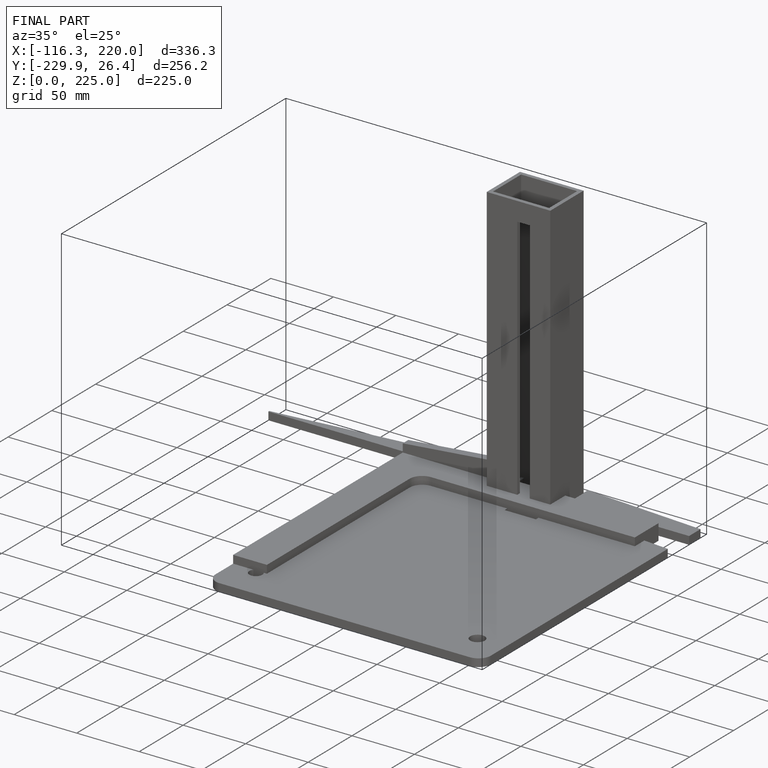
[diagram: finished part — iso view with bounding-box wireframe]
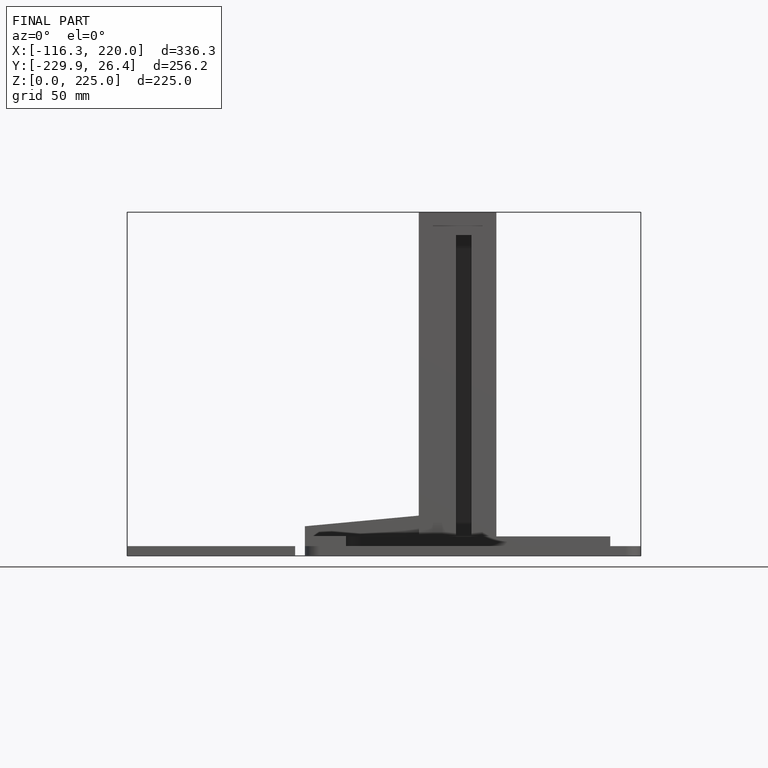
[diagram: finished part — front view with bounding-box wireframe]
